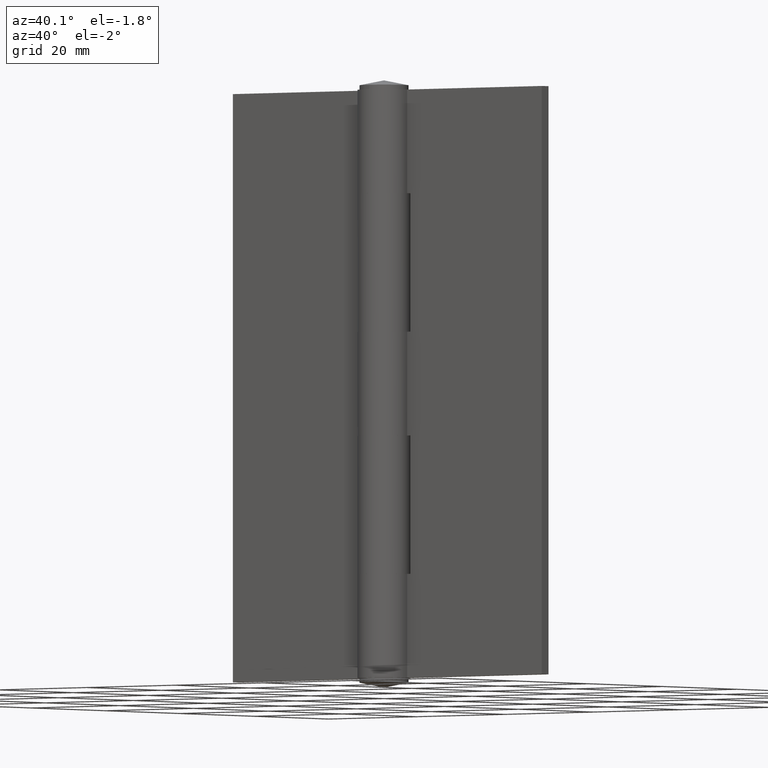
[diagram: clean part render]
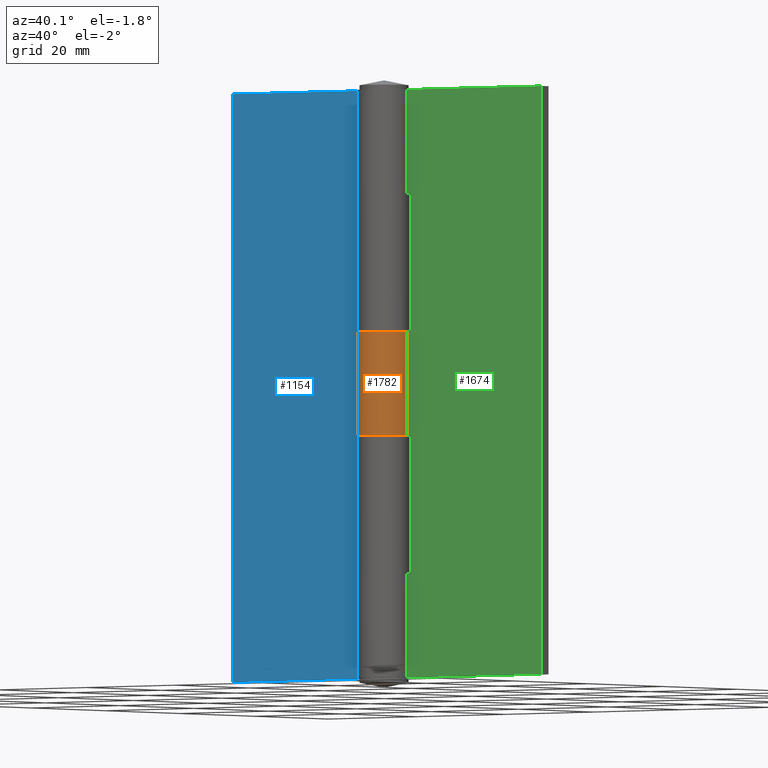
[diagram: same view with three faces highlighted in distinct colors, each labeled with its STEP entity id]
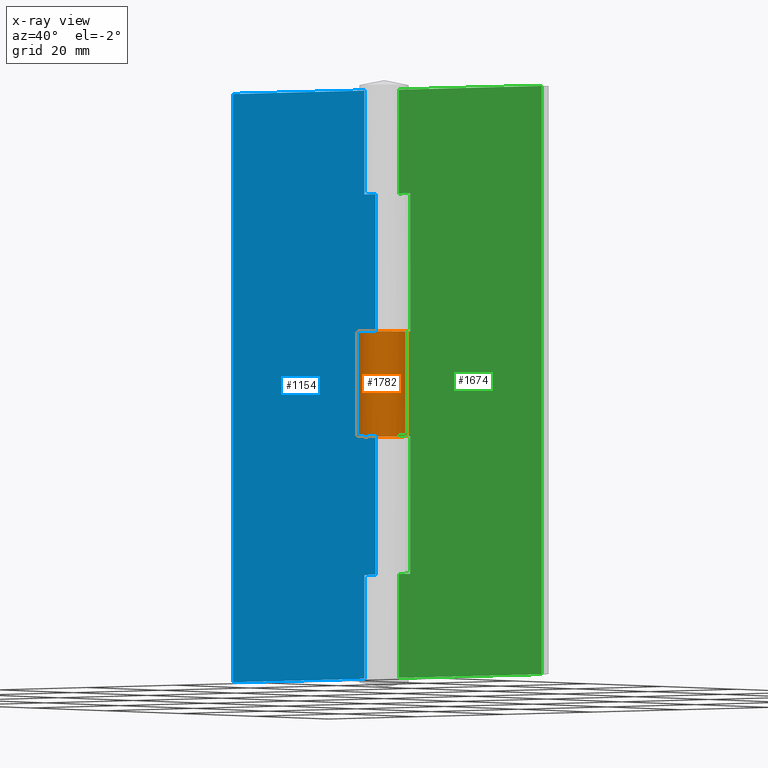
[diagram: x-ray of the same camera — body ghosted, the three highlighted faces saturated]
A machine part, auxiliary view with three faces highlighted in distinct colors.
The next image is the same camera in x-ray (body ghosted, the three faces saturated) — at least one of them is partly hidden behind the body in this view.
Their STEP definitions:

[orange] entity #1782 — the highlighted face is a freeform B-spline surface patch.
#1361=CARTESIAN_POINT('',(4.520785330006300,0.850000000000038,60.000014999999998));
#1362=VERTEX_POINT('',#1361);
#1363=CARTESIAN_POINT('',(4.520785330006300,0.850000000000038,42.000015000000047));
#1364=VERTEX_POINT('',#1363);
#1365=CARTESIAN_POINT('',(4.520785330006300,0.850000000000038,60.000014999999998));
#1366=CARTESIAN_POINT('',(4.520785330006300,0.850000000000038,42.000015000000047));
#1367=QUASI_UNIFORM_CURVE('',1,(#1365,#1366),.UNSPECIFIED.,.F.,.U.);
#1368=EDGE_CURVE('',#1362,#1364,#1367,.T.);
#1675=CARTESIAN_POINT('',(3.793647143183412,2.601584392829983,60.450015000000008));
#1676=CARTESIAN_POINT('',(3.793647143183412,2.601584392829983,41.538765000000041));
#1677=CARTESIAN_POINT('',(1.420154961784876,6.062626001991838,60.450015000000008));
#1678=CARTESIAN_POINT('',(1.420154961784876,6.062626001991838,41.538765000000041));
#1679=CARTESIAN_POINT('',(-2.243545703642331,4.015781701694939,60.450015000000008));
#1680=CARTESIAN_POINT('',(-2.243545703642331,4.015781701694939,41.538765000000041));
#1681=CARTESIAN_POINT('',(-5.907246369069539,1.968937401398041,60.450015000000008));
#1682=CARTESIAN_POINT('',(-5.907246369069539,1.968937401398041,41.538765000000041));
#1683=CARTESIAN_POINT('',(-4.204223270040551,-1.866683341022064,60.450015000000008));
#1684=CARTESIAN_POINT('',(-4.204223270040551,-1.866683341022064,41.538765000000041));
#1685=CARTESIAN_POINT('',(-2.501200171011564,-5.702304083442171,60.450015000000008));
#1686=CARTESIAN_POINT('',(-2.501200171011564,-5.702304083442171,41.538765000000041));
#1687=CARTESIAN_POINT('',(1.474159234780277,-4.357390796165994,60.450015000000008));
#1688=CARTESIAN_POINT('',(1.474159234780277,-4.357390796165994,41.538765000000041));
#1689=CARTESIAN_POINT('',(5.449518640572117,-3.012477508889819,60.450015000000008));
#1690=CARTESIAN_POINT('',(5.449518640572117,-3.012477508889819,41.538765000000041));
#1691=CARTESIAN_POINT('',(4.473999182340599,1.069266719025663,60.450015000000008));
#1692=CARTESIAN_POINT('',(4.473999182340599,1.069266719025663,41.538765000000041));
#1700=(BOUNDED_SURFACE()B_SPLINE_SURFACE(1,2,((#1675,#1677,#1679,#1681,#1683,#1685,#1687,#1689,#1691),(#1676,#1678,#1680,#1682,#1684,#1686,#1688,#1690,#1692)),.UNSPECIFIED.,.F.,.F.,.U.)B_SPLINE_SURFACE_WITH_KNOTS((2,2),(3,2,2,2,3),(0.0,18.911249999999971),(0.0,7.132271854457912,14.264543708915820,21.396815563373739,28.529087417831651),.UNSPECIFIED.)GEOMETRIC_REPRESENTATION_ITEM()RATIONAL_B_SPLINE_SURFACE(((1.0,0.738749490241246,1.0,0.738749490241246,1.0,0.738749490241246,1.0,0.738749490241246,1.0),(1.0,0.738749490241246,1.0,0.738749490241246,1.0,0.738749490241246,1.0,0.738749490241246,1.0)))REPRESENTATION_ITEM('')SURFACE());
#1701=CARTESIAN_POINT('',(3.724245614886200,2.699999000000000,60.000014999999998));
#1702=VERTEX_POINT('',#1701);
#1703=CARTESIAN_POINT('',(3.724245614886200,2.699999000000000,42.000015000000047));
#1704=VERTEX_POINT('',#1703);
#1705=CARTESIAN_POINT('',(3.724245614886200,2.699999000000000,60.000014999999998));
#1706=CARTESIAN_POINT('',(3.724245614886200,2.699999000000000,42.000015000000047));
#1707=QUASI_UNIFORM_CURVE('',1,(#1705,#1706),.UNSPECIFIED.,.F.,.U.);
#1708=EDGE_CURVE('',#1702,#1704,#1707,.T.);
#1709=ORIENTED_EDGE('',*,*,#1708,.T.);
#1710=CARTESIAN_POINT('',(3.724245614886200,2.699999000000000,42.000015000000047));
#1711=CARTESIAN_POINT('',(3.436912234020784,3.096762119198643,42.000015000000097));
#1712=CARTESIAN_POINT('',(2.884492646409437,3.646825357654824,42.000014999999983));
#1713=CARTESIAN_POINT('',(2.036945166669043,4.146384895442585,42.000015000000097));
#1714=CARTESIAN_POINT('',(1.187814974062942,4.478833407690082,42.000014999999891));
#1715=CARTESIAN_POINT('',(0.230180885456817,4.640927079012046,42.000015000000460));
#1716=CARTESIAN_POINT('',(-0.769904087752301,4.562949129380770,42.000014999999991));
#1717=CARTESIAN_POINT('',(-1.633520149795768,4.327724715864853,42.000014999999763));
#1718=CARTESIAN_POINT('',(-2.410060348006720,3.954090522238598,42.000015000001888));
#1719=CARTESIAN_POINT('',(-3.208802076300303,3.349270093224619,42.000014999998577));
#1720=CARTESIAN_POINT('',(-3.810993353753549,2.634621092289263,42.000015000001142));
#1721=CARTESIAN_POINT('',(-4.219270588176529,1.877685552738105,42.000014999999770));
#1722=CARTESIAN_POINT('',(-4.453788250939033,1.216317961021427,42.000015000000552));
#1723=CARTESIAN_POINT('',(-4.614917740966522,0.389805855562198,42.000014999999692));
#1724=CARTESIAN_POINT('',(-4.607832671141350,-0.597633733107005,42.000015000000190));
#1725=CARTESIAN_POINT('',(-4.356772433395306,-1.570115547548498,42.000015000000033));
#1726=CARTESIAN_POINT('',(-3.942630479885664,-2.422563445540984,42.000015000000047));
#1727=CARTESIAN_POINT('',(-3.322340409097925,-3.255222049347078,42.000015000000069));
#1728=CARTESIAN_POINT('',(-2.520538474852182,-3.895156701023407,42.000015000000069));
#1729=CARTESIAN_POINT('',(-1.683646603485696,-4.300373468763138,42.000015000000012));
#1730=CARTESIAN_POINT('',(-0.978809569665916,-4.516186630215369,42.000015000000097));
#1731=CARTESIAN_POINT('',(-0.125847294837842,-4.629171471994915,42.000015000000047));
#1732=CARTESIAN_POINT('',(0.928250040120467,-4.557461270927732,42.000015000000047));
#1733=CARTESIAN_POINT('',(1.983448956575990,-4.202261481566401,42.000015000000062));
#1734=CARTESIAN_POINT('',(2.827320471904291,-3.661106905477919,42.000015000000069));
#1735=CARTESIAN_POINT('',(3.429428723761129,-3.097264072284683,42.000014999999948));
#1736=CARTESIAN_POINT('',(3.909349843726518,-2.469549612135333,42.000015000000573));
#1737=CARTESIAN_POINT('',(4.360244102558660,-1.595103706634467,42.000014999999237));
#1738=CARTESIAN_POINT('',(4.639762279375020,-0.462663167258279,42.000014999999642));
#1739=CARTESIAN_POINT('',(4.601741749697568,0.420194251147517,42.000015000000992));
#1740=CARTESIAN_POINT('',(4.520785330006300,0.850000000000038,42.000015000000047));
#1741=B_SPLINE_CURVE_WITH_KNOTS('',3,(#1710,#1711,#1712,#1713,#1714,#1715,#1716,#1717,#1718,#1719,#1720,#1721,#1722,#1723,#1724,#1725,#1726,#1727,#1728,#1729,#1730,#1731,#1732,#1733,#1734,#1735,#1736,#1737,#1738,#1739,#1740),.UNSPECIFIED.,.F.,.U.,(4,1,1,1,1,1,1,1,1,1,1,1,1,1,1,1,1,1,1,1,1,1,1,1,1,1,1,1,4),(0.000000692436416,1.469541074175456,2.309304115371642,2.939138597876095,4.198784098821307,5.195990666784446,5.930829618448996,6.875473717278968,7.767685643095664,8.922385465758566,9.657180366101017,10.339492064384689,11.021788445195250,12.176456846908691,13.278638380336551,14.013408609075110,15.010576728774620,16.375211248453780,17.057526778875442,17.792324258454670,18.579622652972851,19.629329954221401,20.941331006212089,21.886083883956459,22.620878217720570,23.408167244223250,24.247927616808969,25.560090017049578,26.872157519944491),.UNSPECIFIED.);
#1742=EDGE_CURVE('',#1704,#1364,#1741,.T.);
#1743=ORIENTED_EDGE('',*,*,#1742,.T.);
#1744=ORIENTED_EDGE('',*,*,#1368,.F.);
#1745=CARTESIAN_POINT('',(4.520785330006300,0.850000000000038,60.000014999999998));
#1746=CARTESIAN_POINT('',(4.618152506187397,0.334220467291487,60.000015000000047));
#1747=CARTESIAN_POINT('',(4.630278731399489,-0.535472848200802,60.000015000000033));
#1748=CARTESIAN_POINT('',(4.317030761437017,-1.690428202710112,60.000015000000033));
#1749=CARTESIAN_POINT('',(3.901251087091767,-2.485818164467317,60.000015000000019));
#1750=CARTESIAN_POINT('',(3.360559197321356,-3.176507402464661,60.000014999999969));
#1751=CARTESIAN_POINT('',(2.639671908653237,-3.821538475996098,60.000015000000040));
#1752=CARTESIAN_POINT('',(1.751649227475172,-4.295381649460828,60.000015000000062));
#1753=CARTESIAN_POINT('',(0.904913259754064,-4.527463841193296,60.000014999999962));
#1754=CARTESIAN_POINT('',(0.173951084915604,-4.615158835325188,60.000015000000033));
#1755=CARTESIAN_POINT('',(-0.510790342878249,-4.591413494898335,60.000014999999962));
#1756=CARTESIAN_POINT('',(-1.285055275688659,-4.438978951764230,60.000014999999998));
#1757=CARTESIAN_POINT('',(-1.959562964438371,-4.185200036466140,60.000015000000062));
#1758=CARTESIAN_POINT('',(-2.733378074361557,-3.736771160382147,60.000014999999891));
#1759=CARTESIAN_POINT('',(-3.449741533408332,-3.109476338499470,60.000015000000040));
#1760=CARTESIAN_POINT('',(-4.026226688835005,-2.287866801333843,60.000015000000040));
#1761=CARTESIAN_POINT('',(-4.406150256317498,-1.419146640456950,60.000014999999941));
#1762=CARTESIAN_POINT('',(-4.635026808182002,-0.388359157357283,60.000015000000040));
#1763=CARTESIAN_POINT('',(-4.591563082567534,0.742834616544898,60.000014999999983));
#1764=CARTESIAN_POINT('',(-4.299619244172171,1.702529507291624,60.000015000000012));
#1765=CARTESIAN_POINT('',(-3.916934589184896,2.452246334270568,60.000015000000012));
#1766=CARTESIAN_POINT('',(-3.456665355853559,3.073785396503967,60.000015000000040));
#1767=CARTESIAN_POINT('',(-2.789133014595937,3.696728080242741,60.000014999999998));
#1768=CARTESIAN_POINT('',(-1.994099794089362,4.185466760506724,60.000015000000040));
#1769=CARTESIAN_POINT('',(-1.180054776380036,4.468233851076692,60.000015000000019));
#1770=CARTESIAN_POINT('',(-0.333320221195416,4.612696458507020,60.000014999999813));
#1771=CARTESIAN_POINT('',(0.476664438702803,4.606282932282678,60.000015000000737));
#1772=CARTESIAN_POINT('',(1.370148070973554,4.418080214381751,60.000014999998001));
#1773=CARTESIAN_POINT('',(2.134213464334806,4.103879427869003,60.000015000002698));
#1774=CARTESIAN_POINT('',(2.975406903049599,3.561529478547078,60.000014999999287));
#1775=CARTESIAN_POINT('',(3.467666838351026,3.054210352792939,60.000014999999998));
#1776=CARTESIAN_POINT('',(3.724245614886200,2.699999000000000,60.000014999999998));
#1777=B_SPLINE_CURVE_WITH_KNOTS('',3,(#1745,#1746,#1747,#1748,#1749,#1750,#1751,#1752,#1753,#1754,#1755,#1756,#1757,#1758,#1759,#1760,#1761,#1762,#1763,#1764,#1765,#1766,#1767,#1768,#1769,#1770,#1771,#1772,#1773,#1774,#1775,#1776),.UNSPECIFIED.,.F.,.U.,(4,1,1,1,1,1,1,1,1,1,1,1,1,1,1,1,1,1,1,1,1,1,1,1,1,1,1,1,1,4),(0.000000692432177,1.574500877606816,2.571739943570677,3.568963536801373,4.251285645840763,5.195990666780819,6.455664828723798,7.242836948725685,7.820206679097527,8.659946555920740,9.289785114418329,10.182032659592720,10.811862947074941,11.966554565867311,13.016236326820129,13.803409148742819,14.800662900838310,16.165273532785591,17.162493861349919,17.792324258453231,18.684586344657269,19.471861041746951,20.521447701457280,21.466186470220730,22.043563365418901,23.093249801118930,23.880532414225751,24.772797826056731,25.560090017049429,26.872157519944491),.UNSPECIFIED.);
#1778=EDGE_CURVE('',#1362,#1702,#1777,.T.);
#1779=ORIENTED_EDGE('',*,*,#1778,.T.);
#1780=EDGE_LOOP('',(#1709,#1743,#1744,#1779));
#1781=FACE_OUTER_BOUND('',#1780,.T.);
#1782=ADVANCED_FACE('',(#1781),#1700,.T.);

[blue] entity #1154 — the highlighted face is a freeform B-spline surface patch.
#664=CARTESIAN_POINT('',(-5.199997000000000,0.900000000000012,102.000015000000000));
#665=VERTEX_POINT('',#664);
#671=CARTESIAN_POINT('',(-5.199997000000000,0.900000000000012,84.000015000000090));
#672=VERTEX_POINT('',#671);
#673=CARTESIAN_POINT('',(-5.199997000000000,0.900000000000012,102.000015000000000));
#674=CARTESIAN_POINT('',(-5.199997000000000,0.900000000000012,84.000015000000090));
#675=QUASI_UNIFORM_CURVE('',1,(#673,#674),.UNSPECIFIED.,.F.,.U.);
#676=EDGE_CURVE('',#665,#672,#675,.T.);
#693=CARTESIAN_POINT('',(-2.651414716712530,0.900000000000036,84.000015000000090));
#694=VERTEX_POINT('',#693);
#695=CARTESIAN_POINT('',(-5.199997000000000,0.900000000000012,84.000015000000090));
#696=CARTESIAN_POINT('',(-2.651414716712530,0.900000000000036,84.000015000000090));
#697=QUASI_UNIFORM_CURVE('',1,(#695,#696),.UNSPECIFIED.,.F.,.U.);
#698=EDGE_CURVE('',#672,#694,#697,.T.);
#743=CARTESIAN_POINT('',(-5.199997000000000,0.900000000000012,18.000015000000101));
#744=VERTEX_POINT('',#743);
#750=CARTESIAN_POINT('',(-5.199997000000000,0.900000000000034,0.0));
#751=VERTEX_POINT('',#750);
#752=CARTESIAN_POINT('',(-5.199997000000000,0.900000000000034,0.0));
#753=CARTESIAN_POINT('',(-5.199997000000000,0.900000000000012,18.000015000000101));
#754=QUASI_UNIFORM_CURVE('',1,(#752,#753),.UNSPECIFIED.,.F.,.U.);
#755=EDGE_CURVE('',#751,#744,#754,.T.);
#814=CARTESIAN_POINT('',(-2.651414716712530,0.900000000000034,18.000015000000051));
#815=VERTEX_POINT('',#814);
#851=CARTESIAN_POINT('',(-5.199997000000000,0.900000000000012,18.000015000000101));
#852=CARTESIAN_POINT('',(-2.651414716712530,0.900000000000034,18.000015000000051));
#853=QUASI_UNIFORM_CURVE('',1,(#851,#852),.UNSPECIFIED.,.F.,.U.);
#854=EDGE_CURVE('',#744,#815,#853,.T.);
#869=CARTESIAN_POINT('',(-2.651414716712530,0.900000000000036,60.000014999999998));
#870=VERTEX_POINT('',#869);
#904=CARTESIAN_POINT('',(-5.199997000000000,0.900000000000012,60.000014999999998));
#905=VERTEX_POINT('',#904);
#906=CARTESIAN_POINT('',(-2.651414716712530,0.900000000000036,60.000014999999998));
#907=CARTESIAN_POINT('',(-5.199997000000000,0.900000000000012,60.000014999999998));
#908=QUASI_UNIFORM_CURVE('',1,(#906,#907),.UNSPECIFIED.,.F.,.U.);
#909=EDGE_CURVE('',#870,#905,#908,.T.);
#926=CARTESIAN_POINT('',(-5.199997000000000,0.900000000000012,42.000015000000097));
#927=VERTEX_POINT('',#926);
#928=CARTESIAN_POINT('',(-5.199997000000000,0.900000000000012,60.000014999999998));
#929=CARTESIAN_POINT('',(-5.199997000000000,0.900000000000012,42.000015000000097));
#930=QUASI_UNIFORM_CURVE('',1,(#928,#929),.UNSPECIFIED.,.F.,.U.);
#931=EDGE_CURVE('',#905,#927,#930,.T.);
#948=CARTESIAN_POINT('',(-2.651414716712530,0.900000000000034,42.000015000000047));
#949=VERTEX_POINT('',#948);
#950=CARTESIAN_POINT('',(-5.199997000000000,0.900000000000012,42.000015000000097));
#951=CARTESIAN_POINT('',(-2.651414716712530,0.900000000000034,42.000015000000047));
#952=QUASI_UNIFORM_CURVE('',1,(#950,#951),.UNSPECIFIED.,.F.,.U.);
#953=EDGE_CURVE('',#927,#949,#952,.T.);
#1039=CARTESIAN_POINT('',(-35.0,0.900000000000034,102.000015000000200));
#1040=VERTEX_POINT('',#1039);
#1041=CARTESIAN_POINT('',(-5.199997000000000,0.900000000000012,102.000015000000000));
#1042=CARTESIAN_POINT('',(-35.0,0.900000000000034,102.000015000000200));
#1043=QUASI_UNIFORM_CURVE('',1,(#1041,#1042),.UNSPECIFIED.,.F.,.U.);
#1044=EDGE_CURVE('',#665,#1040,#1043,.T.);
#1084=CARTESIAN_POINT('',(-2.651414716712530,0.900000000000036,84.000015000000090));
#1085=CARTESIAN_POINT('',(-2.651414716712530,0.900000000000036,60.000014999999998));
#1086=QUASI_UNIFORM_CURVE('',1,(#1084,#1085),.UNSPECIFIED.,.F.,.U.);
#1087=EDGE_CURVE('',#694,#870,#1086,.T.);
#1098=CARTESIAN_POINT('',(-35.0,0.900000000000034,0.0));
#1099=VERTEX_POINT('',#1098);
#1105=CARTESIAN_POINT('',(-35.0,0.900000000000034,102.000015000000200));
#1106=CARTESIAN_POINT('',(-35.0,0.900000000000034,0.0));
#1107=QUASI_UNIFORM_CURVE('',1,(#1105,#1106),.UNSPECIFIED.,.F.,.U.);
#1108=EDGE_CURVE('',#1040,#1099,#1107,.T.);
#1122=CARTESIAN_POINT('',(-5.199997000000000,0.900000000000034,0.0));
#1123=CARTESIAN_POINT('',(-35.0,0.900000000000034,0.0));
#1124=QUASI_UNIFORM_CURVE('',1,(#1122,#1123),.UNSPECIFIED.,.F.,.U.);
#1125=EDGE_CURVE('',#751,#1099,#1124,.T.);
#1131=CARTESIAN_POINT('',(-36.615811772202370,0.900000000000034,107.094915551554390));
#1132=CARTESIAN_POINT('',(-36.615811772202370,0.900000000000034,-5.094903287407781));
#1133=CARTESIAN_POINT('',(-1.035602076853485,0.900000000000034,107.094915551554390));
#1134=CARTESIAN_POINT('',(-1.035602076853485,0.900000000000034,-5.094903287407781));
#1135=B_SPLINE_SURFACE_WITH_KNOTS('',1,1,((#1131,#1133),(#1132,#1134)),.UNSPECIFIED.,.F.,.F.,.U.,(2,2),(2,2),(0.0,112.189818838962200),(0.0,35.580209695348877),.UNSPECIFIED.);
#1136=ORIENTED_EDGE('',*,*,#698,.F.);
#1137=ORIENTED_EDGE('',*,*,#676,.F.);
#1138=ORIENTED_EDGE('',*,*,#1044,.T.);
#1139=ORIENTED_EDGE('',*,*,#1108,.T.);
#1140=ORIENTED_EDGE('',*,*,#1125,.F.);
#1141=ORIENTED_EDGE('',*,*,#755,.T.);
#1142=ORIENTED_EDGE('',*,*,#854,.T.);
#1143=CARTESIAN_POINT('',(-2.651414716712530,0.900000000000034,42.000015000000047));
#1144=CARTESIAN_POINT('',(-2.651414716712530,0.900000000000034,18.000015000000051));
#1145=QUASI_UNIFORM_CURVE('',1,(#1143,#1144),.UNSPECIFIED.,.F.,.U.);
#1146=EDGE_CURVE('',#949,#815,#1145,.T.);
#1147=ORIENTED_EDGE('',*,*,#1146,.F.);
#1148=ORIENTED_EDGE('',*,*,#953,.F.);
#1149=ORIENTED_EDGE('',*,*,#931,.F.);
#1150=ORIENTED_EDGE('',*,*,#909,.F.);
#1151=ORIENTED_EDGE('',*,*,#1087,.F.);
#1152=EDGE_LOOP('',(#1136,#1137,#1138,#1139,#1140,#1141,#1142,#1147,#1148,#1149,#1150,#1151));
#1153=FACE_OUTER_BOUND('',#1152,.T.);
#1154=ADVANCED_FACE('',(#1153),#1135,.T.);

[green] entity #1674 — the highlighted face is a freeform B-spline surface patch.
#1269=CARTESIAN_POINT('',(2.651414716712585,0.900000000000034,84.000015000000090));
#1270=VERTEX_POINT('',#1269);
#1305=CARTESIAN_POINT('',(2.651414716712585,0.900000000000034,102.000015000000000));
#1306=VERTEX_POINT('',#1305);
#1307=CARTESIAN_POINT('',(2.651414716712585,0.900000000000034,102.000015000000000));
#1308=CARTESIAN_POINT('',(2.651414716712585,0.900000000000034,84.000015000000090));
#1309=QUASI_UNIFORM_CURVE('',1,(#1307,#1308),.UNSPECIFIED.,.F.,.U.);
#1310=EDGE_CURVE('',#1306,#1270,#1309,.T.);
#1418=CARTESIAN_POINT('',(2.651414716712585,0.900000000000034,42.000015000000047));
#1419=VERTEX_POINT('',#1418);
#1451=CARTESIAN_POINT('',(2.651414716712585,0.900000000000034,60.000014999999998));
#1452=VERTEX_POINT('',#1451);
#1453=CARTESIAN_POINT('',(2.651414716712585,0.900000000000034,60.000014999999998));
#1454=CARTESIAN_POINT('',(2.651414716712585,0.900000000000034,42.000015000000047));
#1455=QUASI_UNIFORM_CURVE('',1,(#1453,#1454),.UNSPECIFIED.,.F.,.U.);
#1456=EDGE_CURVE('',#1452,#1419,#1455,.T.);
#1521=CARTESIAN_POINT('',(2.651414716712585,0.900000000000034,18.000015000000051));
#1522=VERTEX_POINT('',#1521);
#1564=CARTESIAN_POINT('',(2.651414716712585,0.900000000000034,0.0));
#1565=VERTEX_POINT('',#1564);
#1599=CARTESIAN_POINT('',(2.651414716712585,0.900000000000034,18.000015000000051));
#1600=CARTESIAN_POINT('',(2.651414716712585,0.900000000000034,0.0));
#1601=QUASI_UNIFORM_CURVE('',1,(#1599,#1600),.UNSPECIFIED.,.F.,.U.);
#1602=EDGE_CURVE('',#1522,#1565,#1601,.T.);
#1607=CARTESIAN_POINT('',(1.035602944510217,0.900000000000034,107.094915551554190));
#1608=CARTESIAN_POINT('',(1.035602944510217,0.900000000000034,-5.094903287407774));
#1609=CARTESIAN_POINT('',(36.615812639859037,0.900000000000034,107.094915551554190));
#1610=CARTESIAN_POINT('',(36.615812639859037,0.900000000000034,-5.094903287407774));
#1611=B_SPLINE_SURFACE_WITH_KNOTS('',1,1,((#1607,#1609),(#1608,#1610)),.UNSPECIFIED.,.F.,.F.,.U.,(2,2),(2,2),(0.0,112.189818838962000),(0.0,35.580209695348820),.UNSPECIFIED.);
#1612=CARTESIAN_POINT('',(5.199997000000000,0.900000000000012,42.000015000000047));
#1613=VERTEX_POINT('',#1612);
#1614=CARTESIAN_POINT('',(5.199997000000000,0.900000000000012,18.000015000000051));
#1615=VERTEX_POINT('',#1614);
#1616=CARTESIAN_POINT('',(5.199997000000000,0.900000000000012,42.000015000000047));
#1617=CARTESIAN_POINT('',(5.199997000000000,0.900000000000012,18.000015000000051));
#1618=QUASI_UNIFORM_CURVE('',1,(#1616,#1617),.UNSPECIFIED.,.F.,.U.);
#1619=EDGE_CURVE('',#1613,#1615,#1618,.T.);
#1620=ORIENTED_EDGE('',*,*,#1619,.T.);
#1621=CARTESIAN_POINT('',(5.199997000000000,0.900000000000012,18.000015000000051));
#1622=CARTESIAN_POINT('',(2.651414716712585,0.900000000000034,18.000015000000051));
#1623=QUASI_UNIFORM_CURVE('',1,(#1621,#1622),.UNSPECIFIED.,.F.,.U.);
#1624=EDGE_CURVE('',#1615,#1522,#1623,.T.);
#1625=ORIENTED_EDGE('',*,*,#1624,.T.);
#1626=ORIENTED_EDGE('',*,*,#1602,.T.);
#1627=CARTESIAN_POINT('',(35.0,0.900000000000034,0.0));
#1628=VERTEX_POINT('',#1627);
#1629=CARTESIAN_POINT('',(35.0,0.900000000000034,0.0));
#1630=CARTESIAN_POINT('',(2.651414716712585,0.900000000000034,0.0));
#1631=QUASI_UNIFORM_CURVE('',1,(#1629,#1630),.UNSPECIFIED.,.F.,.U.);
#1632=EDGE_CURVE('',#1628,#1565,#1631,.T.);
#1633=ORIENTED_EDGE('',*,*,#1632,.F.);
#1634=CARTESIAN_POINT('',(35.0,0.900000000000034,102.000015000000000));
#1635=VERTEX_POINT('',#1634);
#1636=CARTESIAN_POINT('',(35.0,0.900000000000034,102.000015000000000));
#1637=CARTESIAN_POINT('',(35.0,0.900000000000034,0.0));
#1638=QUASI_UNIFORM_CURVE('',1,(#1636,#1637),.UNSPECIFIED.,.F.,.U.);
#1639=EDGE_CURVE('',#1635,#1628,#1638,.T.);
#1640=ORIENTED_EDGE('',*,*,#1639,.F.);
#1641=CARTESIAN_POINT('',(35.0,0.900000000000034,102.000015000000000));
#1642=CARTESIAN_POINT('',(2.651414716712585,0.900000000000034,102.000015000000000));
#1643=QUASI_UNIFORM_CURVE('',1,(#1641,#1642),.UNSPECIFIED.,.F.,.U.);
#1644=EDGE_CURVE('',#1635,#1306,#1643,.T.);
#1645=ORIENTED_EDGE('',*,*,#1644,.T.);
#1646=ORIENTED_EDGE('',*,*,#1310,.T.);
#1647=CARTESIAN_POINT('',(5.199997000000000,0.900000000000012,84.000015000000090));
#1648=VERTEX_POINT('',#1647);
#1649=CARTESIAN_POINT('',(2.651414716712585,0.900000000000034,84.000015000000090));
#1650=CARTESIAN_POINT('',(5.199997000000000,0.900000000000012,84.000015000000090));
#1651=QUASI_UNIFORM_CURVE('',1,(#1649,#1650),.UNSPECIFIED.,.F.,.U.);
#1652=EDGE_CURVE('',#1270,#1648,#1651,.T.);
#1653=ORIENTED_EDGE('',*,*,#1652,.T.);
#1654=CARTESIAN_POINT('',(5.199997000000000,0.900000000000012,60.000014999999998));
#1655=VERTEX_POINT('',#1654);
#1656=CARTESIAN_POINT('',(5.199997000000000,0.900000000000012,84.000015000000090));
#1657=CARTESIAN_POINT('',(5.199997000000000,0.900000000000012,60.000014999999998));
#1658=QUASI_UNIFORM_CURVE('',1,(#1656,#1657),.UNSPECIFIED.,.F.,.U.);
#1659=EDGE_CURVE('',#1648,#1655,#1658,.T.);
#1660=ORIENTED_EDGE('',*,*,#1659,.T.);
#1661=CARTESIAN_POINT('',(5.199997000000000,0.900000000000012,60.000014999999998));
#1662=CARTESIAN_POINT('',(2.651414716712585,0.900000000000034,60.000014999999998));
#1663=QUASI_UNIFORM_CURVE('',1,(#1661,#1662),.UNSPECIFIED.,.F.,.U.);
#1664=EDGE_CURVE('',#1655,#1452,#1663,.T.);
#1665=ORIENTED_EDGE('',*,*,#1664,.T.);
#1666=ORIENTED_EDGE('',*,*,#1456,.T.);
#1667=CARTESIAN_POINT('',(2.651414716712585,0.900000000000034,42.000015000000047));
#1668=CARTESIAN_POINT('',(5.199997000000000,0.900000000000012,42.000015000000047));
#1669=QUASI_UNIFORM_CURVE('',1,(#1667,#1668),.UNSPECIFIED.,.F.,.U.);
#1670=EDGE_CURVE('',#1419,#1613,#1669,.T.);
#1671=ORIENTED_EDGE('',*,*,#1670,.T.);
#1672=EDGE_LOOP('',(#1620,#1625,#1626,#1633,#1640,#1645,#1646,#1653,#1660,#1665,#1666,#1671));
#1673=FACE_OUTER_BOUND('',#1672,.T.);
#1674=ADVANCED_FACE('',(#1673),#1611,.T.);